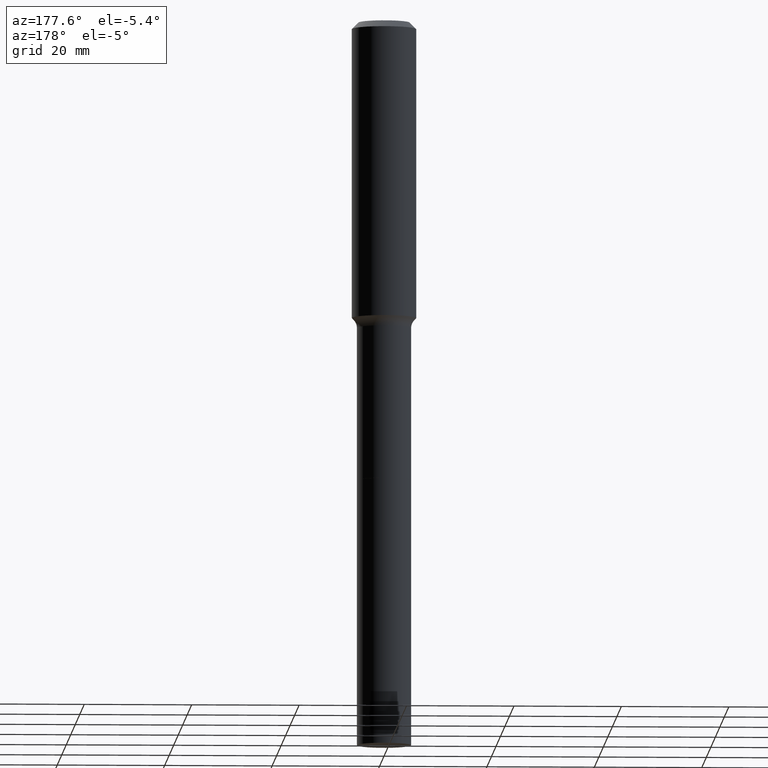
[diagram: clean part render]
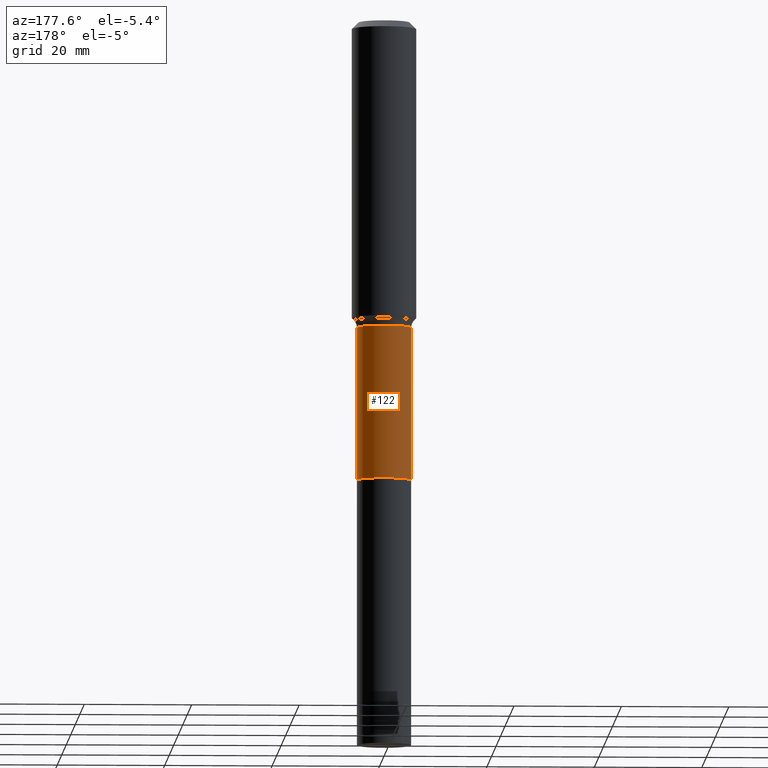
[diagram: same view with one face highlighted and labeled with its STEP entity id]
A machine part, auxiliary view. The second image highlights one B-rep face of the part: STEP entity #122.
In plain terms, the highlighted cylindrical surface (edge-blend (fillet) strip) has radius 5.0495 mm, axis along (-0, 0, 1).
Its self-contained STEP definition (entity closure, byte-faithful):
#7 = VERTEX_POINT ( 'NONE', #296 ) ;
#20 = DIRECTION ( 'NONE',  ( 1.000000000000000000, -6.982962677686269077E-15, 0.000000000000000000 ) ) ;
#33 = CARTESIAN_POINT ( 'NONE',  ( 0.1988000000000000045, -1.388212980324029928E-15, 9.693839430282320098E-30 ) ) ;
#38 = CARTESIAN_POINT ( 'NONE',  ( 0.1988000000000000878, -1.313879342620063844E-14, -3.365499999999999936 ) ) ;
#46 = CIRCLE ( 'NONE', #301, 0.1987999999999999490 ) ;
#53 = LINE ( 'NONE', #216, #152 ) ;
#93 = VERTEX_POINT ( 'NONE', #38 ) ;
#94 = DIRECTION ( 'NONE',  ( -2.445468806185136597E-29, 3.491481338843145583E-15, 1.000000000000000000 ) ) ;
#122 = ADVANCED_FACE ( 'NONE', ( #238 ), #357, .T. ) ;
#138 = DIRECTION ( 'NONE',  ( -2.445468806185136877E-29, 3.491481338843145188E-15, 1.000000000000000000 ) ) ;
#140 = VECTOR ( 'NONE', #192, 39.37007874015748143 ) ;
#148 = DIRECTION ( 'NONE',  ( 1.000000000000000000, -6.982962677686266711E-15, 4.876176775795935793E-29 ) ) ;
#152 = VECTOR ( 'NONE', #138, 39.37007874015748143 ) ;
#153 = CARTESIAN_POINT ( 'NONE',  ( 5.487632001079447088E-29, -7.834884124364020406E-15, -2.244000000000000217 ) ) ;
#183 = EDGE_LOOP ( 'NONE', ( #259, #324, #205, #420 ) ) ;
#192 = DIRECTION ( 'NONE',  ( -2.445468806185136877E-29, 3.491481338843145188E-15, 1.000000000000000000 ) ) ;
#205 = ORIENTED_EDGE ( 'NONE', *, *, #503, .F. ) ;
#216 = CARTESIAN_POINT ( 'NONE',  ( -0.1988000000000000045, 1.412558958691079201E-15, -9.778842959426753228E-30 ) ) ;
#220 = EDGE_CURVE ( 'NONE', #93, #517, #392, .T. ) ;
#227 = DIRECTION ( 'NONE',  ( 1.000000000000000000, -6.982962677686269077E-15, 0.000000000000000000 ) ) ;
#231 = CARTESIAN_POINT ( 'NONE',  ( 0.1987999999999999490, -9.223097104688050531E-15, -2.244000000000000217 ) ) ;
#238 = FACE_OUTER_BOUND ( 'NONE', #183, .T. ) ;
#259 = ORIENTED_EDGE ( 'NONE', *, *, #264, .T. ) ;
#264 = EDGE_CURVE ( 'NONE', #93, #7, #362, .T. ) ;
#296 = CARTESIAN_POINT ( 'NONE',  ( -0.1988000000000001155, -8.380173326429232201E-15, -3.365499999999999936 ) ) ;
#297 = EDGE_CURVE ( 'NONE', #7, #453, #53, .T. ) ;
#301 = AXIS2_PLACEMENT_3D ( 'NONE', #153, #432, #227 ) ;
#324 = ORIENTED_EDGE ( 'NONE', *, *, #297, .T. ) ;
#348 = CARTESIAN_POINT ( 'NONE',  ( 0.000000000000000000, 0.000000000000000000, 0.000000000000000000 ) ) ;
#357 = CYLINDRICAL_SURFACE ( 'NONE', #439, 0.1988000000000000045 ) ;
#362 = CIRCLE ( 'NONE', #425, 0.1988000000000000878 ) ;
#392 = LINE ( 'NONE', #33, #140 ) ;
#394 = DIRECTION ( 'NONE',  ( -2.445468806185136597E-29, 3.491481338843145583E-15, 1.000000000000000000 ) ) ;
#420 = ORIENTED_EDGE ( 'NONE', *, *, #220, .F. ) ;
#425 = AXIS2_PLACEMENT_3D ( 'NONE', #497, #94, #20 ) ;
#432 = DIRECTION ( 'NONE',  ( -2.445468806185136597E-29, 3.491481338843145583E-15, 1.000000000000000000 ) ) ;
#439 = AXIS2_PLACEMENT_3D ( 'NONE', #348, #394, #148 ) ;
#453 = VERTEX_POINT ( 'NONE', #500 ) ;
#497 = CARTESIAN_POINT ( 'NONE',  ( 8.230225267216076149E-29, -1.175058044587660674E-14, -3.365499999999999936 ) ) ;
#500 = CARTESIAN_POINT ( 'NONE',  ( -0.1987999999999999490, -8.380173326429233779E-15, -2.244000000000000217 ) ) ;
#503 = EDGE_CURVE ( 'NONE', #517, #453, #46, .T. ) ;
#517 = VERTEX_POINT ( 'NONE', #231 ) ;